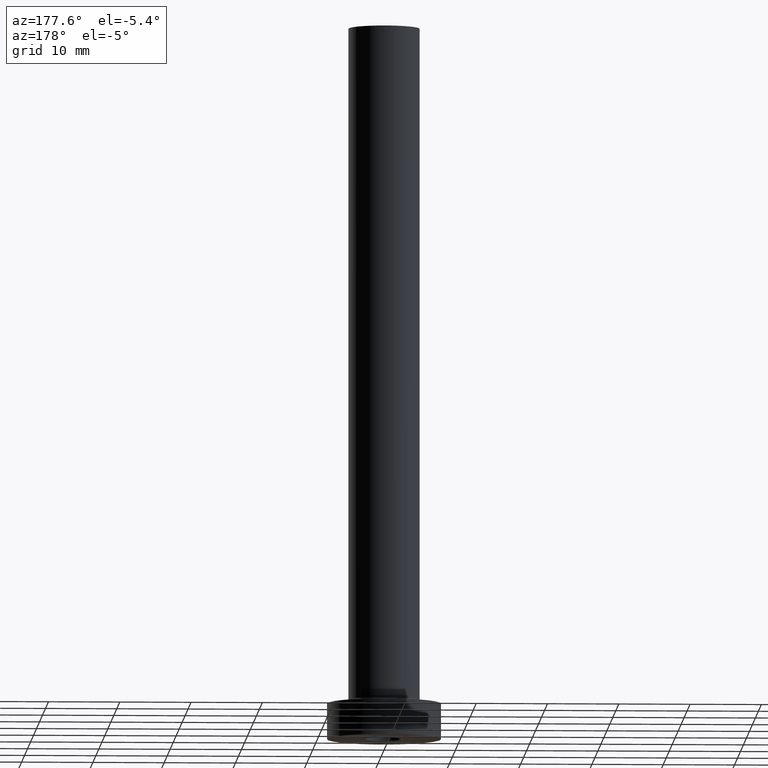
[diagram: clean part render]
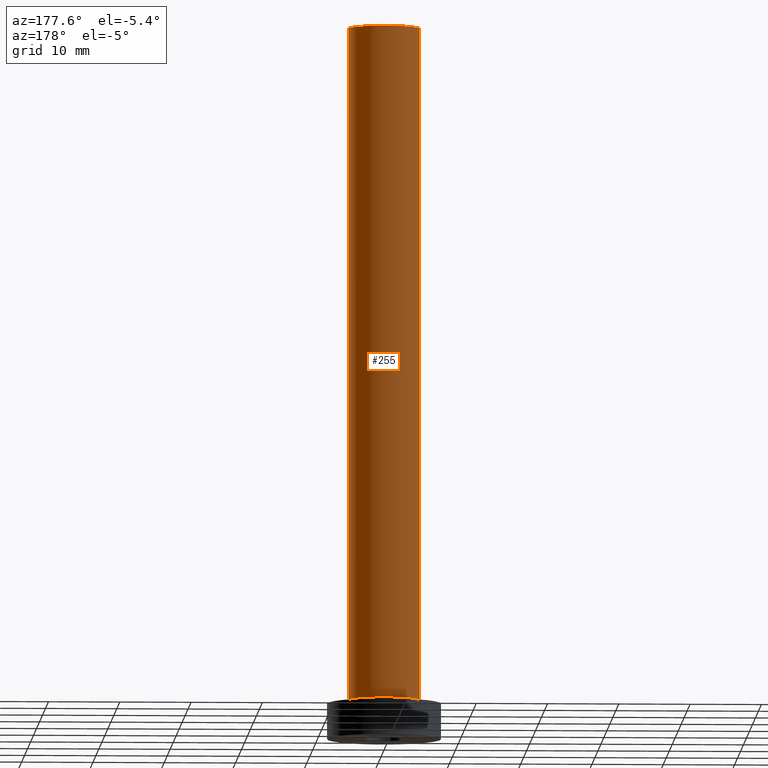
[diagram: same view with one face highlighted and labeled with its STEP entity id]
A machine part, auxiliary view. The second image highlights one B-rep face of the part: STEP entity #255.
In plain terms, the highlighted cylindrical surface (edge-blend (fillet) strip) has radius 5 mm, axis along (-0, -0, -1).
Its self-contained STEP definition (entity closure, byte-faithful):
#6 = CIRCLE ( 'NONE', #61, 5.000000000000000000 ) ;
#26 = CARTESIAN_POINT ( 'NONE',  ( 5.000000000000000000, 6.123233995736766282E-16, 100.0000000000000000 ) ) ;
#30 = AXIS2_PLACEMENT_3D ( 'NONE', #232, #126, #161 ) ;
#32 = CARTESIAN_POINT ( 'NONE',  ( 0.000000000000000000, 0.000000000000000000, 100.0000000000000000 ) ) ;
#49 = CARTESIAN_POINT ( 'NONE',  ( -5.000000000000000000, 0.000000000000000000, 5.500000000000005329 ) ) ;
#53 = ORIENTED_EDGE ( 'NONE', *, *, #275, .T. ) ;
#57 = LINE ( 'NONE', #26, #342 ) ;
#61 = AXIS2_PLACEMENT_3D ( 'NONE', #32, #109, #283 ) ;
#67 = EDGE_CURVE ( 'NONE', #184, #92, #6, .T. ) ;
#81 = LINE ( 'NONE', #330, #250 ) ;
#92 = VERTEX_POINT ( 'NONE', #403 ) ;
#98 = VERTEX_POINT ( 'NONE', #154 ) ;
#109 = DIRECTION ( 'NONE',  ( 0.000000000000000000, 0.000000000000000000, 1.000000000000000000 ) ) ;
#119 = AXIS2_PLACEMENT_3D ( 'NONE', #385, #318, #423 ) ;
#126 = DIRECTION ( 'NONE',  ( -0.000000000000000000, -0.000000000000000000, -1.000000000000000000 ) ) ;
#135 = EDGE_CURVE ( 'NONE', #92, #168, #81, .T. ) ;
#154 = CARTESIAN_POINT ( 'NONE',  ( 5.000000000000000000, 6.123233995736766282E-16, 5.500000000000005329 ) ) ;
#155 = EDGE_LOOP ( 'NONE', ( #310, #53, #411, #413 ) ) ;
#161 = DIRECTION ( 'NONE',  ( -1.000000000000000000, 0.000000000000000000, 0.000000000000000000 ) ) ;
#168 = VERTEX_POINT ( 'NONE', #49 ) ;
#184 = VERTEX_POINT ( 'NONE', #432 ) ;
#191 = CYLINDRICAL_SURFACE ( 'NONE', #30, 5.000000000000000000 ) ;
#197 = FACE_OUTER_BOUND ( 'NONE', #155, .T. ) ;
#232 = CARTESIAN_POINT ( 'NONE',  ( 0.000000000000000000, 0.000000000000000000, 100.0000000000000000 ) ) ;
#250 = VECTOR ( 'NONE', #360, 1000.000000000000000 ) ;
#255 = ADVANCED_FACE ( 'NONE', ( #197 ), #191, .T. ) ;
#275 = EDGE_CURVE ( 'NONE', #184, #98, #57, .T. ) ;
#279 = CIRCLE ( 'NONE', #119, 5.000000000000000000 ) ;
#283 = DIRECTION ( 'NONE',  ( 1.000000000000000000, 0.000000000000000000, 0.000000000000000000 ) ) ;
#310 = ORIENTED_EDGE ( 'NONE', *, *, #67, .F. ) ;
#318 = DIRECTION ( 'NONE',  ( 0.000000000000000000, 0.000000000000000000, 1.000000000000000000 ) ) ;
#330 = CARTESIAN_POINT ( 'NONE',  ( -5.000000000000000000, 0.000000000000000000, 100.0000000000000000 ) ) ;
#339 = DIRECTION ( 'NONE',  ( -0.000000000000000000, -0.000000000000000000, -1.000000000000000000 ) ) ;
#342 = VECTOR ( 'NONE', #339, 1000.000000000000000 ) ;
#358 = EDGE_CURVE ( 'NONE', #98, #168, #279, .T. ) ;
#360 = DIRECTION ( 'NONE',  ( -0.000000000000000000, -0.000000000000000000, -1.000000000000000000 ) ) ;
#385 = CARTESIAN_POINT ( 'NONE',  ( 0.000000000000000000, 0.000000000000000000, 5.500000000000005329 ) ) ;
#403 = CARTESIAN_POINT ( 'NONE',  ( -5.000000000000000000, 0.000000000000000000, 100.0000000000000000 ) ) ;
#411 = ORIENTED_EDGE ( 'NONE', *, *, #358, .T. ) ;
#413 = ORIENTED_EDGE ( 'NONE', *, *, #135, .F. ) ;
#423 = DIRECTION ( 'NONE',  ( 1.000000000000000000, 0.000000000000000000, 0.000000000000000000 ) ) ;
#432 = CARTESIAN_POINT ( 'NONE',  ( 5.000000000000000000, 6.123233995736766282E-16, 100.0000000000000000 ) ) ;